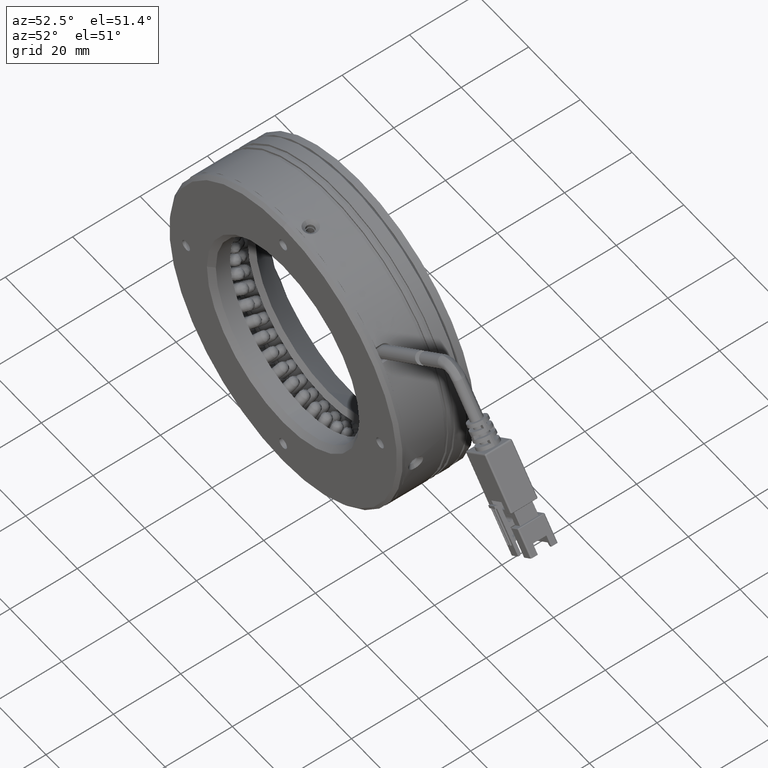
[diagram: clean part render]
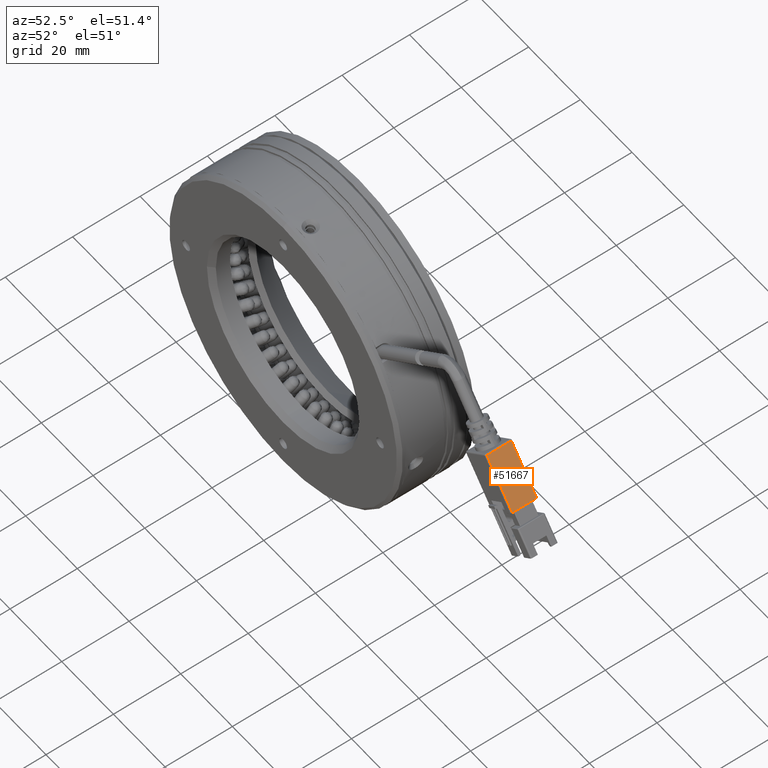
[diagram: same view with one face highlighted and labeled with its STEP entity id]
A machine part, auxiliary view. The second image highlights one B-rep face of the part: STEP entity #51667.
In plain terms, the highlighted planar face has unit normal (-0.7695, 0, -0.6387).
Its self-contained STEP definition (entity closure, byte-faithful):
#901 = VERTEX_POINT ( 'NONE', #73399 ) ;
#2073 = EDGE_LOOP ( 'NONE', ( #101180, #10348, #100260, #93359 ) ) ;
#5597 = LINE ( 'NONE', #13137, #26777 ) ;
#6004 = VERTEX_POINT ( 'NONE', #7191 ) ;
#7191 = CARTESIAN_POINT ( 'NONE',  ( 34.57643740636911600, 23.77876601230218500, 20.58630307316852600 ) ) ;
#7712 = VECTOR ( 'NONE', #111927, 1000.000000000000000 ) ;
#8190 = LINE ( 'NONE', #42908, #115583 ) ;
#10348 = ORIENTED_EDGE ( 'NONE', *, *, #56950, .F. ) ;
#11005 = LINE ( 'NONE', #29615, #7712 ) ;
#11048 = DIRECTION ( 'NONE',  ( 0.6386556579432576300, -6.753218087352324900E-016, -0.7694926579097844900 ) ) ;
#13137 = CARTESIAN_POINT ( 'NONE',  ( 34.57643740636911600, 24.17876601230218400, 20.58630307316852600 ) ) ;
#17121 = VECTOR ( 'NONE', #11048, 1000.000000000000000 ) ;
#18047 = EDGE_CURVE ( 'NONE', #118667, #901, #8190, .T. ) ;
#26777 = VECTOR ( 'NONE', #65468, 1000.000000000000000 ) ;
#29615 = CARTESIAN_POINT ( 'NONE',  ( 24.74114027404294800, 24.17876601230219400, 32.43649000497921300 ) ) ;
#31963 = CARTESIAN_POINT ( 'NONE',  ( 34.57643740636911600, 16.57876601230218200, 20.58630307316853000 ) ) ;
#35220 = CARTESIAN_POINT ( 'NONE',  ( 24.74114027404294800, 23.77876601230219200, 32.43649000497921300 ) ) ;
#42908 = CARTESIAN_POINT ( 'NONE',  ( 34.70416853795776300, 16.57876601230218200, 20.43240454158657500 ) ) ;
#51667 = ADVANCED_FACE ( 'NONE', ( #53265 ), #131370, .F. ) ;
#53265 = FACE_OUTER_BOUND ( 'NONE', #2073, .T. ) ;
#56950 = EDGE_CURVE ( 'NONE', #133526, #6004, #100133, .T. ) ;
#59062 = CARTESIAN_POINT ( 'NONE',  ( 34.70416853795777000, 24.17876601230218400, 20.43240454158657100 ) ) ;
#63366 = CARTESIAN_POINT ( 'NONE',  ( 34.70416853795777000, 23.77876601230218500, 20.43240454158657100 ) ) ;
#63843 = DIRECTION ( 'NONE',  ( -0.6386556579432576300, 6.753218087352324900E-016, 0.7694926579097844900 ) ) ;
#65468 = DIRECTION ( 'NONE',  ( -4.312980940812307400E-016, -1.000000000000000000, 5.196551735481171100E-016 ) ) ;
#69548 = DIRECTION ( 'NONE',  ( 4.312980940812307400E-016, 1.000000000000000000, -5.196551735481171100E-016 ) ) ;
#73399 = CARTESIAN_POINT ( 'NONE',  ( 24.74114027404122900, 16.57876601230219300, 32.43649000498128000 ) ) ;
#74038 = AXIS2_PLACEMENT_3D ( 'NONE', #59062, #131816, #69548 ) ;
#89612 = EDGE_CURVE ( 'NONE', #6004, #118667, #5597, .T. ) ;
#93359 = ORIENTED_EDGE ( 'NONE', *, *, #18047, .F. ) ;
#100133 = LINE ( 'NONE', #63366, #17121 ) ;
#100260 = ORIENTED_EDGE ( 'NONE', *, *, #126207, .F. ) ;
#101180 = ORIENTED_EDGE ( 'NONE', *, *, #89612, .F. ) ;
#111927 = DIRECTION ( 'NONE',  ( 4.312980940812307400E-016, 1.000000000000000000, -5.196551735481171100E-016 ) ) ;
#115583 = VECTOR ( 'NONE', #63843, 1000.000000000000000 ) ;
#118667 = VERTEX_POINT ( 'NONE', #31963 ) ;
#126207 = EDGE_CURVE ( 'NONE', #901, #133526, #11005, .T. ) ;
#131370 = PLANE ( 'NONE',  #74038 ) ;
#131816 = DIRECTION ( 'NONE',  ( -0.7694926579097844900, 4.930380657631323800E-032, -0.6386556579432576300 ) ) ;
#133526 = VERTEX_POINT ( 'NONE', #35220 ) ;